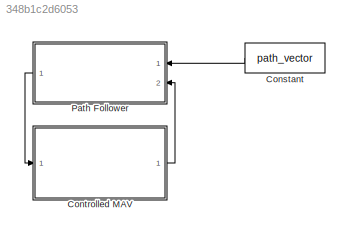
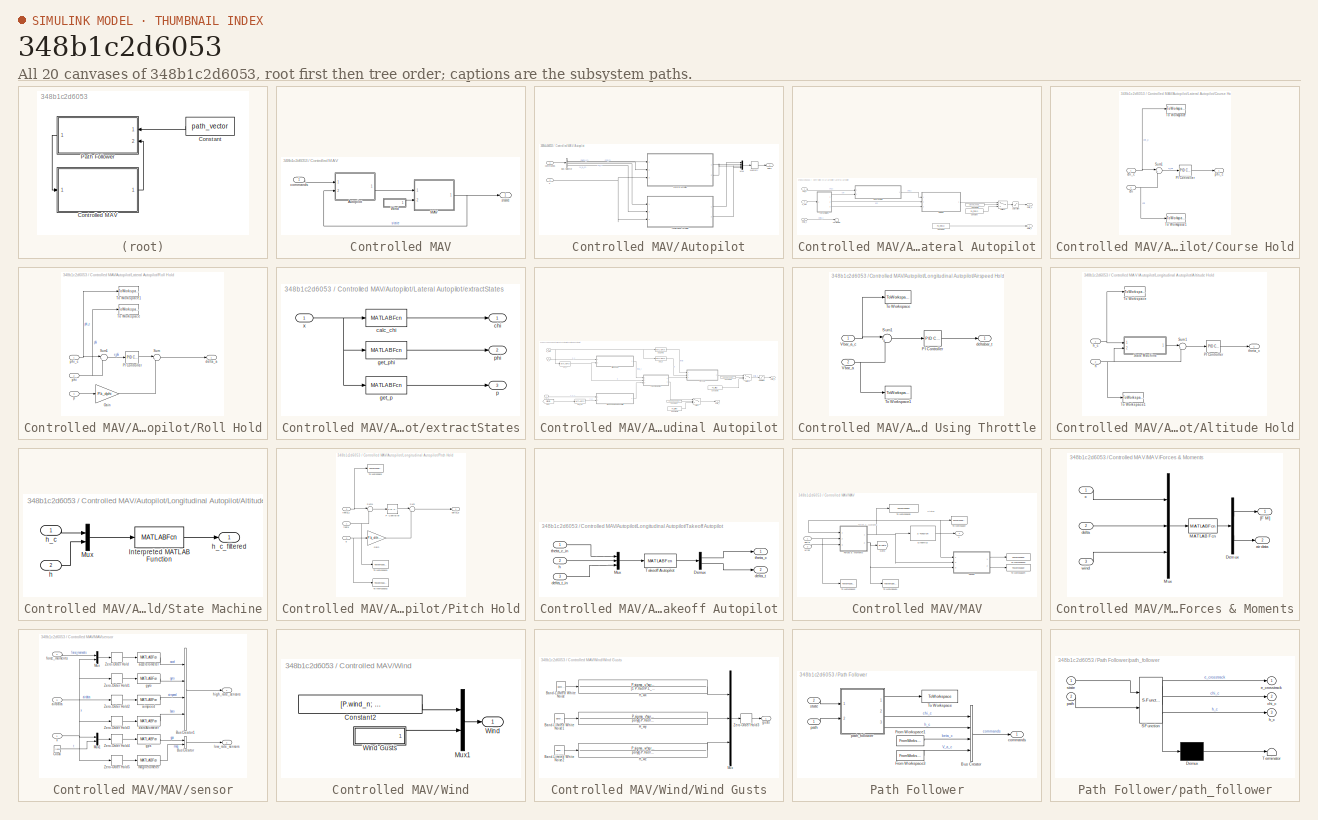
[diagram: thumbnail index - all 20 canvases of the model, root first then tree order]
MODEL slx_348b1c2d6053
KIND model
CONFIG AbsTol = auto
CONFIG EnableMultiTasking = on
CONFIG FixedStep = P.Ts
CONFIG InitFcn = param_chap10
CONFIG MaxStep = auto
CONFIG MinStep = auto
CONFIG RelTol = 1e-3
CONFIG SampleTimeConstraint = Unconstrained
CONFIG SolverName = ode4
CONFIG StartTime = 0.0
CONFIG StopTime = tsim
BLOCK [Constant] Constant
  Value = path_vector
BLOCK [SubSystem] Controlled MAV
  Ports = [1, 1]
  RequestExecContextInheritance = off
BLOCK [SubSystem] Controlled MAV/Autopilot
  Ports = [2, 1]
  RequestExecContextInheritance = off
BLOCK [BusSelector] Controlled MAV/Autopilot/Bus Selector
  OutputSignals = chi_c,beta_c,h_c,V_a_c
  Ports = [1, 4]
BLOCK [SubSystem] Controlled MAV/Autopilot/Lateral Autopilot
  Ports = [3, 2]
  RequestExecContextInheritance = off
BLOCK [Constant] Controlled MAV/Autopilot/Lateral Autopilot/Constant
  Value = P.u_trim(2)
BLOCK [Constant] Controlled MAV/Autopilot/Lateral Autopilot/Constant1
  Value = P.u_trim(3)
BLOCK [Constant] Controlled MAV/Autopilot/Lateral Autopilot/Constant8
  Value = closedLoopEnable
BLOCK [SubSystem] Controlled MAV/Autopilot/Lateral Autopilot/Course Hold
  Ports = [2, 1]
  RequestExecContextInheritance = off
BLOCK [Reference] Controlled MAV/Autopilot/Lateral Autopilot/Course Hold/PI Controller  REF=pid_lib/PID Controller
  Ports = [1, 1]
  SourceBlock = pid_lib/PID Controller
  SourceProductBaseCode = SL
  SourceType = PID 1dof
BLOCK [Sum] Controlled MAV/Autopilot/Lateral Autopilot/Course Hold/Sum1
  Inputs = |+-
  Ports = [2, 1]
BLOCK [ToWorkspace] Controlled MAV/Autopilot/Lateral Autopilot/Course Hold/To Workspace
  FixptAsFi = on
  MaxDataPoints = inf
  Ports = [1]
  SampleTime = -1
  SaveFormat = Timeseries
  VariableName = chi_c
BLOCK [ToWorkspace] Controlled MAV/Autopilot/Lateral Autopilot/Course Hold/To Workspace1
  FixptAsFi = on
  MaxDataPoints = inf
  Ports = [1]
  SampleTime = -1
  SaveFormat = Timeseries
  VariableName = chi
BLOCK [Inport] Controlled MAV/Autopilot/Lateral Autopilot/Course Hold/chi
  Port = 2
BLOCK [Inport] Controlled MAV/Autopilot/Lateral Autopilot/Course Hold/chi_c
BLOCK [Outport] Controlled MAV/Autopilot/Lateral Autopilot/Course Hold/phi_c
  VectorParamsAs1DForOutWhenUnconnected = off
BLOCK [SubSystem] Controlled MAV/Autopilot/Lateral Autopilot/Roll Hold
  Ports = [3, 1]
  RequestExecContextInheritance = off
BLOCK [Gain] Controlled MAV/Autopilot/Lateral Autopilot/Roll Hold/Gain
  Gain = P.k_dphi
BLOCK [Reference] Controlled MAV/Autopilot/Lateral Autopilot/Roll Hold/PI Controller  REF=pid_lib/PID Controller
  Ports = [1, 1]
  SourceBlock = pid_lib/PID Controller
  SourceProductBaseCode = SL
  SourceType = PID 1dof
BLOCK [Sum] Controlled MAV/Autopilot/Lateral Autopilot/Roll Hold/Sum
  Inputs = |+-
  Ports = [2, 1]
BLOCK [Sum] Controlled MAV/Autopilot/Lateral Autopilot/Roll Hold/Sum1
  Inputs = |+-
  Ports = [2, 1]
BLOCK [ToWorkspace] Controlled MAV/Autopilot/Lateral Autopilot/Roll Hold/To Workspace
  FixptAsFi = on
  MaxDataPoints = inf
  Ports = [1]
  SampleTime = -1
  SaveFormat = Timeseries
  VariableName = phi
BLOCK [ToWorkspace] Controlled MAV/Autopilot/Lateral Autopilot/Roll Hold/To Workspace1
  FixptAsFi = on
  MaxDataPoints = inf
  Ports = [1]
  SampleTime = -1
  SaveFormat = Timeseries
  VariableName = phi_c
BLOCK [Outport] Controlled MAV/Autopilot/Lateral Autopilot/Roll Hold/delta_a
  VectorParamsAs1DForOutWhenUnconnected = off
BLOCK [Inport] Controlled MAV/Autopilot/Lateral Autopilot/Roll Hold/p
  Port = 3
BLOCK [Inport] Controlled MAV/Autopilot/Lateral Autopilot/Roll Hold/phi
  Port = 2
BLOCK [Inport] Controlled MAV/Autopilot/Lateral Autopilot/Roll Hold/phi_c
BLOCK [Saturate] Controlled MAV/Autopilot/Lateral Autopilot/Saturation
  LowerLimit = -aileron_c_sat
  UpperLimit = aileron_c_sat
BLOCK [Switch] Controlled MAV/Autopilot/Lateral Autopilot/Switch1
  Criteria = u2 > Threshold
  InputSameDT = off
  SaturateOnIntegerOverflow = off
BLOCK [Terminator] Controlled MAV/Autopilot/Lateral Autopilot/Terminator
BLOCK [Inport] Controlled MAV/Autopilot/Lateral Autopilot/beta_c
  Port = 2
BLOCK [Inport] Controlled MAV/Autopilot/Lateral Autopilot/chi_c
BLOCK [Outport] Controlled MAV/Autopilot/Lateral Autopilot/delta_a
  VectorParamsAs1DForOutWhenUnconnected = off
BLOCK [Outport] Controlled MAV/Autopilot/Lateral Autopilot/delta_r
  Port = 2
  VectorParamsAs1DForOutWhenUnconnected = off
BLOCK [SubSystem] Controlled MAV/Autopilot/Lateral Autopilot/extractStates
  Ports = [1, 3]
  RequestExecContextInheritance = off
BLOCK [MATLABFcn] Controlled MAV/Autopilot/Lateral Autopilot/extractStates/calc_chi
  MATLABFcn = calc_chi(u)
  Ports = [1, 1]
BLOCK [Outport] Controlled MAV/Autopilot/Lateral Autopilot/extractStates/chi
  VectorParamsAs1DForOutWhenUnconnected = off
BLOCK [MATLABFcn] Controlled MAV/Autopilot/Lateral Autopilot/extractStates/get_p
  MATLABFcn = get_p(u)
  Ports = [1, 1]
BLOCK [MATLABFcn] Controlled MAV/Autopilot/Lateral Autopilot/extractStates/get_phi
  MATLABFcn = get_phi(u)
  Ports = [1, 1]
BLOCK [Outport] Controlled MAV/Autopilot/Lateral Autopilot/extractStates/p
  Port = 3
  VectorParamsAs1DForOutWhenUnconnected = off
BLOCK [Outport] Controlled MAV/Autopilot/Lateral Autopilot/extractStates/phi
  Port = 2
  VectorParamsAs1DForOutWhenUnconnected = off
BLOCK [Inport] Controlled MAV/Autopilot/Lateral Autopilot/extractStates/x
BLOCK [Inport] Controlled MAV/Autopilot/Lateral Autopilot/x_hat
  Port = 3
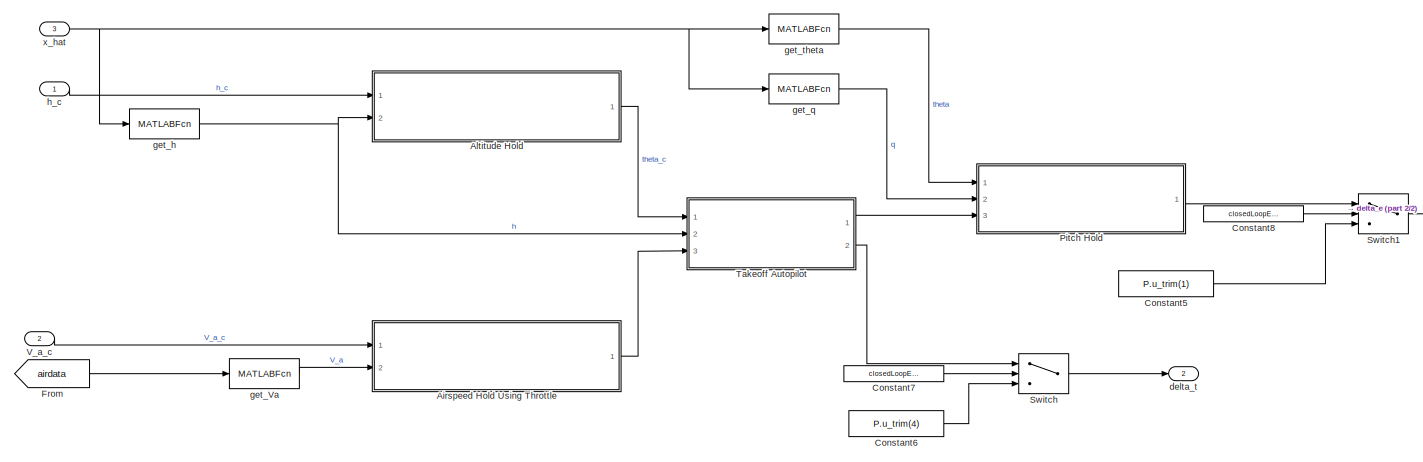
[diagram: Controlled MAV/Autopilot/Longitudinal Autopilot - part 1/2, most of the canvas]
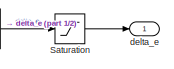
[diagram: Controlled MAV/Autopilot/Longitudinal Autopilot - part 2/2, middle right region]
BLOCK [SubSystem] Controlled MAV/Autopilot/Longitudinal Autopilot
  Ports = [3, 2]
  RequestExecContextInheritance = off
BLOCK [SubSystem] Controlled MAV/Autopilot/Longitudinal Autopilot/Airspeed Hold Using Throttle
  Ports = [2, 1]
  RequestExecContextInheritance = off
BLOCK [Reference] Controlled MAV/Autopilot/Longitudinal Autopilot/Airspeed Hold Using Throttle/PI Controller  REF=pid_lib/PID Controller
  Ports = [1, 1]
  SourceBlock = pid_lib/PID Controller
  SourceProductBaseCode = SL
  SourceType = PID 1dof
BLOCK [Sum] Controlled MAV/Autopilot/Longitudinal Autopilot/Airspeed Hold Using Throttle/Sum1
  Inputs = |+-
  Ports = [2, 1]
BLOCK [ToWorkspace] Controlled MAV/Autopilot/Longitudinal Autopilot/Airspeed Hold Using Throttle/To Workspace
  FixptAsFi = on
  MaxDataPoints = inf
  Ports = [1]
  SampleTime = -1
  SaveFormat = Timeseries
  VariableName = Vbar_a_c
BLOCK [ToWorkspace] Controlled MAV/Autopilot/Longitudinal Autopilot/Airspeed Hold Using Throttle/To Workspace1
  FixptAsFi = on
  MaxDataPoints = inf
  Ports = [1]
  SampleTime = -1
  SaveFormat = Timeseries
  VariableName = Vbar_a
BLOCK [Inport] Controlled MAV/Autopilot/Longitudinal Autopilot/Airspeed Hold Using Throttle/Vbar_a
  Port = 2
BLOCK [Inport] Controlled MAV/Autopilot/Longitudinal Autopilot/Airspeed Hold Using Throttle/Vbar_a_c
BLOCK [Outport] Controlled MAV/Autopilot/Longitudinal Autopilot/Airspeed Hold Using Throttle/deltabar_t
  VectorParamsAs1DForOutWhenUnconnected = off
BLOCK [SubSystem] Controlled MAV/Autopilot/Longitudinal Autopilot/Altitude Hold
  Ports = [2, 1]
  RequestExecContextInheritance = off
BLOCK [Reference] Controlled MAV/Autopilot/Longitudinal Autopilot/Altitude Hold/PI Controller  REF=pid_lib/PID Controller
  Ports = [1, 1]
  SourceBlock = pid_lib/PID Controller
  SourceProductBaseCode = SL
  SourceType = PID 1dof
BLOCK [SubSystem] Controlled MAV/Autopilot/Longitudinal Autopilot/Altitude Hold/State Machine
  Ports = [2, 1]
  RequestExecContextInheritance = off
BLOCK [MATLABFcn] Controlled MAV/Autopilot/Longitudinal Autopilot/Altitude Hold/State Machine/Interpreted MATLAB Function
  MATLABFcn = stateMachine(u(1), u(2), P)
  Ports = [1, 1]
BLOCK [Mux] Controlled MAV/Autopilot/Longitudinal Autopilot/Altitude Hold/State Machine/Mux
  DisplayOption = bar
  Inputs = 2
  Ports = [2, 1]
BLOCK [Inport] Controlled MAV/Autopilot/Longitudinal Autopilot/Altitude Hold/State Machine/h
  Port = 2
BLOCK [Inport] Controlled MAV/Autopilot/Longitudinal Autopilot/Altitude Hold/State Machine/h_c
BLOCK [Outport] Controlled MAV/Autopilot/Longitudinal Autopilot/Altitude Hold/State Machine/h_c_filtered
  VectorParamsAs1DForOutWhenUnconnected = off
BLOCK [Sum] Controlled MAV/Autopilot/Longitudinal Autopilot/Altitude Hold/Sum1
  Inputs = |+-
  Ports = [2, 1]
BLOCK [ToWorkspace] Controlled MAV/Autopilot/Longitudinal Autopilot/Altitude Hold/To Workspace
  FixptAsFi = on
  MaxDataPoints = inf
  Ports = [1]
  SampleTime = -1
  SaveFormat = Timeseries
  VariableName = h_c
BLOCK [ToWorkspace] Controlled MAV/Autopilot/Longitudinal Autopilot/Altitude Hold/To Workspace1
  FixptAsFi = on
  MaxDataPoints = inf
  Ports = [1]
  SampleTime = -1
  SaveFormat = Timeseries
  VariableName = h
BLOCK [Inport] Controlled MAV/Autopilot/Longitudinal Autopilot/Altitude Hold/h
  Port = 2
BLOCK [Inport] Controlled MAV/Autopilot/Longitudinal Autopilot/Altitude Hold/h_c
BLOCK [Outport] Controlled MAV/Autopilot/Longitudinal Autopilot/Altitude Hold/theta_c
  VectorParamsAs1DForOutWhenUnconnected = off
BLOCK [Constant] Controlled MAV/Autopilot/Longitudinal Autopilot/Constant5
  Value = P.u_trim(1)
BLOCK [Constant] Controlled MAV/Autopilot/Longitudinal Autopilot/Constant6
  Value = P.u_trim(4)
BLOCK [Constant] Controlled MAV/Autopilot/Longitudinal Autopilot/Constant7
  Value = closedLoopEnable
BLOCK [Constant] Controlled MAV/Autopilot/Longitudinal Autopilot/Constant8
  Value = closedLoopEnable
BLOCK [From] Controlled MAV/Autopilot/Longitudinal Autopilot/From
  GotoTag = airdata
  TagVisibility = global
BLOCK [SubSystem] Controlled MAV/Autopilot/Longitudinal Autopilot/Pitch Hold
  Ports = [3, 1]
  RequestExecContextInheritance = off
BLOCK [Gain] Controlled MAV/Autopilot/Longitudinal Autopilot/Pitch Hold/Gain
  Gain = P.k_dtheta
BLOCK [Reference] Controlled MAV/Autopilot/Longitudinal Autopilot/Pitch Hold/P Controller  REF=pid_lib/PID Controller
  Ports = [1, 1]
  SourceBlock = pid_lib/PID Controller
  SourceProductBaseCode = SL
  SourceType = PID 1dof
BLOCK [Sum] Controlled MAV/Autopilot/Longitudinal Autopilot/Pitch Hold/Sum
  Inputs = |+-
  Ports = [2, 1]
BLOCK [Sum] Controlled MAV/Autopilot/Longitudinal Autopilot/Pitch Hold/Sum1
  Inputs = |+-
  Ports = [2, 1]
BLOCK [ToWorkspace] Controlled MAV/Autopilot/Longitudinal Autopilot/Pitch Hold/To Workspace
  FixptAsFi = on
  MaxDataPoints = inf
  Ports = [1]
  SampleTime = -1
  SaveFormat = Timeseries
  VariableName = theta_c
BLOCK [ToWorkspace] Controlled MAV/Autopilot/Longitudinal Autopilot/Pitch Hold/To Workspace1
  FixptAsFi = on
  MaxDataPoints = inf
  Ports = [1]
  SampleTime = -1
  SaveFormat = Timeseries
  VariableName = theta
BLOCK [ToWorkspace] Controlled MAV/Autopilot/Longitudinal Autopilot/Pitch Hold/To Workspace2
  FixptAsFi = on
  MaxDataPoints = inf
  Ports = [1]
  SampleTime = -1
  SaveFormat = Timeseries
  VariableName = q
BLOCK [Outport] Controlled MAV/Autopilot/Longitudinal Autopilot/Pitch Hold/delta_e
  VectorParamsAs1DForOutWhenUnconnected = off
BLOCK [Inport] Controlled MAV/Autopilot/Longitudinal Autopilot/Pitch Hold/q
  Port = 2
BLOCK [Inport] Controlled MAV/Autopilot/Longitudinal Autopilot/Pitch Hold/theta
BLOCK [Inport] Controlled MAV/Autopilot/Longitudinal Autopilot/Pitch Hold/theta_c
  Port = 3
BLOCK [Saturate] Controlled MAV/Autopilot/Longitudinal Autopilot/Saturation
  LowerLimit = -elevator_c_sat
  UpperLimit = elevator_c_sat
BLOCK [Switch] Controlled MAV/Autopilot/Longitudinal Autopilot/Switch
  Criteria = u2 > Threshold
  InputSameDT = off
  SaturateOnIntegerOverflow = off
BLOCK [Switch] Controlled MAV/Autopilot/Longitudinal Autopilot/Switch1
  Criteria = u2 > Threshold
  InputSameDT = off
  SaturateOnIntegerOverflow = off
BLOCK [SubSystem] Controlled MAV/Autopilot/Longitudinal Autopilot/Takeoff Autopilot
  Ports = [3, 2]
  RequestExecContextInheritance = off
BLOCK [Demux] Controlled MAV/Autopilot/Longitudinal Autopilot/Takeoff Autopilot/Demux
  Outputs = 2
  Ports = [1, 2]
BLOCK [Mux] Controlled MAV/Autopilot/Longitudinal Autopilot/Takeoff Autopilot/Mux
  DisplayOption = bar
  Inputs = 3
  Ports = [3, 1]
BLOCK [MATLABFcn] Controlled MAV/Autopilot/Longitudinal Autopilot/Takeoff Autopilot/Takeoff Autopilot
  MATLABFcn = takeoff_autopilot(u(1), u(2), u(3), P)
  OutputDimensions = 2
  OutputSignalType = real
  Ports = [1, 1]
BLOCK [Outport] Controlled MAV/Autopilot/Longitudinal Autopilot/Takeoff Autopilot/delta_t
  Port = 2
  VectorParamsAs1DForOutWhenUnconnected = off
BLOCK [Inport] Controlled MAV/Autopilot/Longitudinal Autopilot/Takeoff Autopilot/delta_t_in
  Port = 3
BLOCK [Inport] Controlled MAV/Autopilot/Longitudinal Autopilot/Takeoff Autopilot/h
  Port = 2
BLOCK [Outport] Controlled MAV/Autopilot/Longitudinal Autopilot/Takeoff Autopilot/theta_c
  VectorParamsAs1DForOutWhenUnconnected = off
BLOCK [Inport] Controlled MAV/Autopilot/Longitudinal Autopilot/Takeoff Autopilot/theta_c_in
BLOCK [Inport] Controlled MAV/Autopilot/Longitudinal Autopilot/V_a_c
  Port = 2
BLOCK [Outport] Controlled MAV/Autopilot/Longitudinal Autopilot/delta_e
  VectorParamsAs1DForOutWhenUnconnected = off
BLOCK [Outport] Controlled MAV/Autopilot/Longitudinal Autopilot/delta_t
  Port = 2
  VectorParamsAs1DForOutWhenUnconnected = off
BLOCK [MATLABFcn] Controlled MAV/Autopilot/Longitudinal Autopilot/get_Va
  MATLABFcn = get_Va(u)
  Ports = [1, 1]
BLOCK [MATLABFcn] Controlled MAV/Autopilot/Longitudinal Autopilot/get_h
  MATLABFcn = get_h(u)
  Ports = [1, 1]
BLOCK [MATLABFcn] Controlled MAV/Autopilot/Longitudinal Autopilot/get_q
  MATLABFcn = get_q(u)
  Ports = [1, 1]
BLOCK [MATLABFcn] Controlled MAV/Autopilot/Longitudinal Autopilot/get_theta
  MATLABFcn = get_theta(u)
  Ports = [1, 1]
BLOCK [Inport] Controlled MAV/Autopilot/Longitudinal Autopilot/h_c
BLOCK [Inport] Controlled MAV/Autopilot/Longitudinal Autopilot/x_hat
  Port = 3
BLOCK [Memory] Controlled MAV/Autopilot/Memory
  InheritSampleTime = on
  InitialCondition = P.u_trim
BLOCK [Mux] Controlled MAV/Autopilot/Mux
  DisplayOption = bar
  Ports = [4, 1]
BLOCK [Inport] Controlled MAV/Autopilot/commands
BLOCK [Outport] Controlled MAV/Autopilot/delta
  VectorParamsAs1DForOutWhenUnconnected = off
BLOCK [Inport] Controlled MAV/Autopilot/x
  Port = 2
BLOCK [SubSystem] Controlled MAV/MAV
  Ports = [2, 1]
  RequestExecContextInheritance = off
BLOCK [S-Function] Controlled MAV/MAV/Dynamics
  EnableBusSupport = off
  FunctionName = mav_dynamics
  Parameters = P
  Ports = [1, 1]
  SFcnIsStateOwnerBlock = off
  SFunctionDeploymentMode = off
BLOCK [SubSystem] Controlled MAV/MAV/Forces & Moments
  Ports = [3, 2]
  RequestExecContextInheritance = off
BLOCK [Demux] Controlled MAV/MAV/Forces & Moments/Demux
  Outputs = [6;6]
  Ports = [1, 2]
BLOCK [MATLABFcn] Controlled MAV/MAV/Forces & Moments/MATLAB Fcn
  MATLABFcn = forces_moments(u(1:12),u(13:16),u(17:22),P)
  OutputDimensions = 12
  Ports = [1, 1]
BLOCK [Mux] Controlled MAV/MAV/Forces & Moments/Mux
  DisplayOption = bar
  Inputs = 3
  Ports = [3, 1]
BLOCK [Outport] Controlled MAV/MAV/Forces & Moments/[F M]
  VectorParamsAs1DForOutWhenUnconnected = off
BLOCK [Outport] Controlled MAV/MAV/Forces & Moments/air data
  Port = 2
  VectorParamsAs1DForOutWhenUnconnected = off
BLOCK [Inport] Controlled MAV/MAV/Forces & Moments/delta
  Port = 2
BLOCK [Inport] Controlled MAV/MAV/Forces & Moments/wind
  Port = 3
BLOCK [Inport] Controlled MAV/MAV/Forces & Moments/x
BLOCK [Goto] Controlled MAV/MAV/Goto
  GotoTag = airdata
  TagVisibility = global
BLOCK [ToWorkspace] Controlled MAV/MAV/To Workspace
  FixptAsFi = on
  MaxDataPoints = inf
  Ports = [1]
  SampleTime = -1
  SaveFormat = Timeseries
  VariableName = states
BLOCK [ToWorkspace] Controlled MAV/MAV/To Workspace1
  FixptAsFi = on
  MaxDataPoints = inf
  Ports = [1]
  SampleTime = -1
  SaveFormat = Timeseries
  VariableName = airdata
BLOCK [ToWorkspace] Controlled MAV/MAV/To Workspace2
  FixptAsFi = on
  MaxDataPoints = inf
  Ports = [1]
  SampleTime = -1
  SaveFormat = Timeseries
  VariableName = delta
BLOCK [ToWorkspace] Controlled MAV/MAV/To Workspace3
  FixptAsFi = on
  MaxDataPoints = inf
  Ports = [1]
  SampleTime = -1
  SaveFormat = Timeseries
  VariableName = high_rate_sensors
BLOCK [ToWorkspace] Controlled MAV/MAV/To Workspace4
  FixptAsFi = on
  MaxDataPoints = inf
  Ports = [1]
  SampleTime = -1
  SaveFormat = Timeseries
  VariableName = low_rate_sensors
BLOCK [ToWorkspace] Controlled MAV/MAV/To Workspace5
  FixptAsFi = on
  MaxDataPoints = inf
  Ports = [1]
  SampleTime = -1
  SaveFormat = Timeseries
  VariableName = forces_moments_logged
BLOCK [Inport] Controlled MAV/MAV/delta
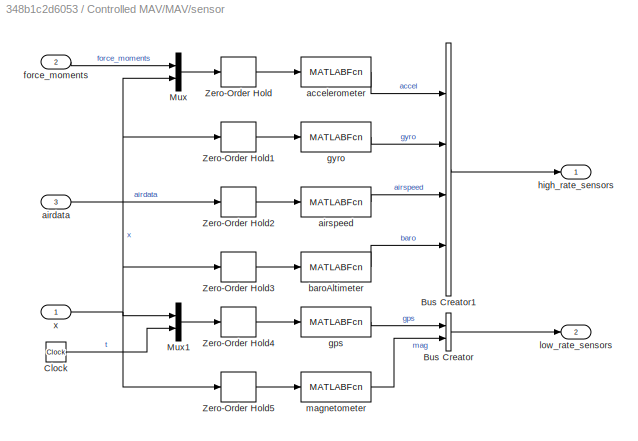
BLOCK [SubSystem] Controlled MAV/MAV/sensor
  Ports = [3, 2]
  RequestExecContextInheritance = off
BLOCK [BusCreator] Controlled MAV/MAV/sensor/Bus Creator
  DisplayOption = bar
  InheritFromInputs = on
  Inputs = 2
  Ports = [2, 1]
BLOCK [BusCreator] Controlled MAV/MAV/sensor/Bus Creator1
  DisplayOption = bar
  InheritFromInputs = on
  Inputs = 4
  Ports = [4, 1]
BLOCK [Clock] Controlled MAV/MAV/sensor/Clock
BLOCK [Mux] Controlled MAV/MAV/sensor/Mux
  DisplayOption = bar
  Inputs = 2
  Ports = [2, 1]
BLOCK [Mux] Controlled MAV/MAV/sensor/Mux1
  DisplayOption = bar
  Inputs = 2
  Ports = [2, 1]
BLOCK [ZeroOrderHold] Controlled MAV/MAV/sensor/Zero-Order Hold
  SampleTime = P.Ts_highrate
BLOCK [ZeroOrderHold] Controlled MAV/MAV/sensor/Zero-Order Hold1
  SampleTime = P.Ts_highrate
BLOCK [ZeroOrderHold] Controlled MAV/MAV/sensor/Zero-Order Hold2
  SampleTime = P.Ts_highrate
BLOCK [ZeroOrderHold] Controlled MAV/MAV/sensor/Zero-Order Hold3
  SampleTime = P.Ts_highrate
BLOCK [ZeroOrderHold] Controlled MAV/MAV/sensor/Zero-Order Hold4
  SampleTime = P.Ts_lowrate
BLOCK [ZeroOrderHold] Controlled MAV/MAV/sensor/Zero-Order Hold5
  SampleTime = P.Ts_lowrate
BLOCK [MATLABFcn] Controlled MAV/MAV/sensor/accelerometer
  MATLABFcn = accelerometer(u(1:6), u(7:18), P)
  Ports = [1, 1]
BLOCK [Inport] Controlled MAV/MAV/sensor/airdata
  Port = 3
BLOCK [MATLABFcn] Controlled MAV/MAV/sensor/airspeed
  MATLABFcn = airspeed(u,P)
  Ports = [1, 1]
BLOCK [MATLABFcn] Controlled MAV/MAV/sensor/baroAltimeter
  MATLABFcn = baroAltimeter(u,P)
  Ports = [1, 1]
BLOCK [Inport] Controlled MAV/MAV/sensor/force_moments
  Port = 2
BLOCK [MATLABFcn] Controlled MAV/MAV/sensor/gps
  MATLABFcn = gps(u(1:12), u(13), P)
  Ports = [1, 1]
BLOCK [MATLABFcn] Controlled MAV/MAV/sensor/gyro
  MATLABFcn = gyro(u,P)
  Ports = [1, 1]
BLOCK [Outport] Controlled MAV/MAV/sensor/high_rate_sensors
  VectorParamsAs1DForOutWhenUnconnected = off
BLOCK [Outport] Controlled MAV/MAV/sensor/low_rate_sensors
  Port = 2
  VectorParamsAs1DForOutWhenUnconnected = off
BLOCK [MATLABFcn] Controlled MAV/MAV/sensor/magnetometer
  MATLABFcn = magnetometer(u,P)
  Ports = [1, 1]
BLOCK [Inport] Controlled MAV/MAV/sensor/x
BLOCK [Inport] Controlled MAV/MAV/wind
  Port = 2
BLOCK [Outport] Controlled MAV/MAV/x
  VectorParamsAs1DForOutWhenUnconnected = off
BLOCK [SubSystem] Controlled MAV/Wind
  Ports = [0, 1]
  RequestExecContextInheritance = off
BLOCK [Constant] Controlled MAV/Wind/Constant2
  Value = [P.wind_n; P.wind_e; P.wind_d]
BLOCK [Mux] Controlled MAV/Wind/Mux1
  DisplayOption = bar
  Inputs = 2
  Ports = [2, 1]
BLOCK [Outport] Controlled MAV/Wind/Wind
  VectorParamsAs1DForOutWhenUnconnected = off
BLOCK [SubSystem] Controlled MAV/Wind/Wind Gusts
  Ports = [0, 1]
  RequestExecContextInheritance = off
BLOCK [Reference] Controlled MAV/Wind/Wind Gusts/Band-Limited White Noise  REF=simulink/Sources/Band-Limited
White Noise
  Ports = [0, 1]
  SourceBlock = simulink/Sources/Band-Limited\nWhite Noise
  SourceProductBaseCode = SL
  SourceType = Band-Limited White Noise.
BLOCK [Reference] Controlled MAV/Wind/Wind Gusts/Band-Limited White Noise1  REF=simulink/Sources/Band-Limited
White Noise
  Ports = [0, 1]
  SourceBlock = simulink/Sources/Band-Limited\nWhite Noise
  SourceProductBaseCode = SL
  SourceType = Band-Limited White Noise.
BLOCK [Reference] Controlled MAV/Wind/Wind Gusts/Band-Limited White Noise2  REF=simulink/Sources/Band-Limited
White Noise
  Ports = [0, 1]
  SourceBlock = simulink/Sources/Band-Limited\nWhite Noise
  SourceProductBaseCode = SL
  SourceType = Band-Limited White Noise.
BLOCK [TransferFcn] Controlled MAV/Wind/Wind Gusts/H_wx
  Denominator = [1 P.Va0/P.L_u]
  Numerator = P.sigma_u*sqrt(2*P.Va0/P.L_u)
BLOCK [TransferFcn] Controlled MAV/Wind/Wind Gusts/H_wy
  Denominator = poly([-P.Va0/P.L_v, -P.Va0/P.L_v])
  Numerator = P.sigma_v*sqrt(3*P.Va0/P.L_v)*[0, 1, P.Va0/sqrt(3)/P.L_v]
BLOCK [TransferFcn] Controlled MAV/Wind/Wind Gusts/H_wz
  Denominator = poly([-P.Va0/P.L_w, -P.Va0/P.L_w])
  Numerator = P.sigma_w*sqrt(3*P.Va0/P.L_w)*[0, 1, P.Va0/sqrt(3)/P.L_w]
BLOCK [Mux] Controlled MAV/Wind/Wind Gusts/Mux
  DisplayOption = bar
  Inputs = 3
  Ports = [3, 1]
BLOCK [ZeroOrderHold] Controlled MAV/Wind/Wind Gusts/Zero-Order Hold3
  SampleTime = P.Ts
BLOCK [Outport] Controlled MAV/Wind/Wind Gusts/gusts
  VectorParamsAs1DForOutWhenUnconnected = off
BLOCK [Inport] Controlled MAV/commands
BLOCK [Outport] Controlled MAV/state
  VectorParamsAs1DForOutWhenUnconnected = off
BLOCK [SubSystem] Path Follower
  Ports = [2, 1]
  RequestExecContextInheritance = off
BLOCK [BusCreator] Path Follower/Bus Creator
  DisplayOption = bar
  InheritFromInputs = on
  Inputs = 4
  Ports = [4, 1]
BLOCK [FromWorkspace] Path Follower/From Workspace1
  VariableName = beta_c_in
BLOCK [FromWorkspace] Path Follower/From Workspace3
  VariableName = V_a_c_in
BLOCK [ToWorkspace] Path Follower/To Workspace
  FixptAsFi = on
  MaxDataPoints = inf
  Ports = [1]
  SampleTime = -1
  SaveFormat = Timeseries
  VariableName = crosstrack_error
BLOCK [Outport] Path Follower/commands
  VectorParamsAs1DForOutWhenUnconnected = off
BLOCK [Inport] Path Follower/path
BLOCK [SubSystem] Path Follower/path_follower
  ErrorFcn = Stateflow.Translate.translate
  PermitHierarchicalResolution = ExplicitOnly
  Ports = [2, 3]
  RequestExecContextInheritance = off
  SFBlockType = MATLAB Function
  TreatAsAtomicUnit = on
BLOCK [Demux] Path Follower/path_follower/ Demux 
  Outputs = 1
  Ports = [1, 1]
BLOCK [S-Function] Path Follower/path_follower/ SFunction 
  EnableBusSupport = on
  FunctionName = sf_sfun
  PortCounts = [2 4]
  Ports = [2, 4]
  SFcnIsStateOwnerBlock = off
  SFunctionDeploymentMode = off
  Tag = Stateflow S-Function 2
BLOCK [Terminator] Path Follower/path_follower/ Terminator 
BLOCK [Outport] Path Follower/path_follower/chi_c
  Port = 2
  VectorParamsAs1DForOutWhenUnconnected = off
BLOCK [Outport] Path Follower/path_follower/e_crosstrack
  VectorParamsAs1DForOutWhenUnconnected = off
BLOCK [Outport] Path Follower/path_follower/h_c
  Port = 3
  VectorParamsAs1DForOutWhenUnconnected = off
BLOCK [Inport] Path Follower/path_follower/path
  Port = 2
BLOCK [Inport] Path Follower/path_follower/state
BLOCK [Inport] Path Follower/state
  Port = 2
ANNOTATION Controlled MAV/MAV: Forces & Moments
ANNOTATION Controlled MAV/MAV: States
LINE Constant:1 -> Path Follower:1
LINE Controlled MAV/Autopilot/Bus Selector:1 -> Controlled MAV/Autopilot/Lateral Autopilot:1
LINE Controlled MAV/Autopilot/Bus Selector:2 -> Controlled MAV/Autopilot/Lateral Autopilot:2
LINE Controlled MAV/Autopilot/Bus Selector:3 -> Controlled MAV/Autopilot/Longitudinal Autopilot:1
LINE Controlled MAV/Autopilot/Bus Selector:4 -> Controlled MAV/Autopilot/Longitudinal Autopilot:2
LINE Controlled MAV/Autopilot/Lateral Autopilot/Constant1:1 -> Controlled MAV/Autopilot/Lateral Autopilot/delta_r:1
LINE Controlled MAV/Autopilot/Lateral Autopilot/Constant8:1 -> Controlled MAV/Autopilot/Lateral Autopilot/Switch1:2
LINE Controlled MAV/Autopilot/Lateral Autopilot/Constant:1 -> Controlled MAV/Autopilot/Lateral Autopilot/Switch1:3
LINE Controlled MAV/Autopilot/Lateral Autopilot/Course Hold/PI Controller:1 -> Controlled MAV/Autopilot/Lateral Autopilot/Course Hold/phi_c:1
LINE Controlled MAV/Autopilot/Lateral Autopilot/Course Hold/Sum1:1 -> Controlled MAV/Autopilot/Lateral Autopilot/Course Hold/PI Controller:1
NET Controlled MAV/Autopilot/Lateral Autopilot/Course Hold/chi:1 -> Controlled MAV/Autopilot/Lateral Autopilot/Course Hold/Sum1:2, Controlled MAV/Autopilot/Lateral Autopilot/Course Hold/To Workspace1:1
NET Controlled MAV/Autopilot/Lateral Autopilot/Course Hold/chi_c:1 -> Controlled MAV/Autopilot/Lateral Autopilot/Course Hold/Sum1:1, Controlled MAV/Autopilot/Lateral Autopilot/Course Hold/To Workspace:1
LINE Controlled MAV/Autopilot/Lateral Autopilot/Course Hold:1 -> Controlled MAV/Autopilot/Lateral Autopilot/Roll Hold:1
LINE Controlled MAV/Autopilot/Lateral Autopilot/Roll Hold/Gain:1 -> Controlled MAV/Autopilot/Lateral Autopilot/Roll Hold/Sum:2
LINE Controlled MAV/Autopilot/Lateral Autopilot/Roll Hold/PI Controller:1 -> Controlled MAV/Autopilot/Lateral Autopilot/Roll Hold/Sum:1
LINE Controlled MAV/Autopilot/Lateral Autopilot/Roll Hold/Sum1:1 -> Controlled MAV/Autopilot/Lateral Autopilot/Roll Hold/PI Controller:1
LINE Controlled MAV/Autopilot/Lateral Autopilot/Roll Hold/Sum:1 -> Controlled MAV/Autopilot/Lateral Autopilot/Roll Hold/delta_a:1
LINE Controlled MAV/Autopilot/Lateral Autopilot/Roll Hold/p:1 -> Controlled MAV/Autopilot/Lateral Autopilot/Roll Hold/Gain:1
NET Controlled MAV/Autopilot/Lateral Autopilot/Roll Hold/phi:1 -> Controlled MAV/Autopilot/Lateral Autopilot/Roll Hold/Sum1:2, Controlled MAV/Autopilot/Lateral Autopilot/Roll Hold/To Workspace:1
NET Controlled MAV/Autopilot/Lateral Autopilot/Roll Hold/phi_c:1 -> Controlled MAV/Autopilot/Lateral Autopilot/Roll Hold/Sum1:1, Controlled MAV/Autopilot/Lateral Autopilot/Roll Hold/To Workspace1:1
LINE Controlled MAV/Autopilot/Lateral Autopilot/Roll Hold:1 -> Controlled MAV/Autopilot/Lateral Autopilot/Switch1:1
LINE Controlled MAV/Autopilot/Lateral Autopilot/Saturation:1 -> Controlled MAV/Autopilot/Lateral Autopilot/delta_a:1
LINE Controlled MAV/Autopilot/Lateral Autopilot/Switch1:1 -> Controlled MAV/Autopilot/Lateral Autopilot/Saturation:1
LINE Controlled MAV/Autopilot/Lateral Autopilot/beta_c:1 -> Controlled MAV/Autopilot/Lateral Autopilot/Terminator:1
LINE Controlled MAV/Autopilot/Lateral Autopilot/chi_c:1 -> Controlled MAV/Autopilot/Lateral Autopilot/Course Hold:1
LINE Controlled MAV/Autopilot/Lateral Autopilot/extractStates/calc_chi:1 -> Controlled MAV/Autopilot/Lateral Autopilot/extractStates/chi:1
LINE Controlled MAV/Autopilot/Lateral Autopilot/extractStates/get_p:1 -> Controlled MAV/Autopilot/Lateral Autopilot/extractStates/p:1
LINE Controlled MAV/Autopilot/Lateral Autopilot/extractStates/get_phi:1 -> Controlled MAV/Autopilot/Lateral Autopilot/extractStates/phi:1
NET Controlled MAV/Autopilot/Lateral Autopilot/extractStates/x:1 -> Controlled MAV/Autopilot/Lateral Autopilot/extractStates/calc_chi:1, Controlled MAV/Autopilot/Lateral Autopilot/extractStates/get_p:1, Controlled MAV/Autopilot/Lateral Autopilot/extractStates/get_phi:1
LINE Controlled MAV/Autopilot/Lateral Autopilot/extractStates:1 -> Controlled MAV/Autopilot/Lateral Autopilot/Course Hold:2
LINE Controlled MAV/Autopilot/Lateral Autopilot/extractStates:2 -> Controlled MAV/Autopilot/Lateral Autopilot/Roll Hold:2
LINE Controlled MAV/Autopilot/Lateral Autopilot/extractStates:3 -> Controlled MAV/Autopilot/Lateral Autopilot/Roll Hold:3
LINE Controlled MAV/Autopilot/Lateral Autopilot/x_hat:1 -> Controlled MAV/Autopilot/Lateral Autopilot/extractStates:1
LINE Controlled MAV/Autopilot/Lateral Autopilot:1 -> Controlled MAV/Autopilot/Mux:2
LINE Controlled MAV/Autopilot/Lateral Autopilot:2 -> Controlled MAV/Autopilot/Mux:3
LINE Controlled MAV/Autopilot/Longitudinal Autopilot/Airspeed Hold Using Throttle/PI Controller:1 -> Controlled MAV/Autopilot/Longitudinal Autopilot/Airspeed Hold Using Throttle/deltabar_t:1
LINE Controlled MAV/Autopilot/Longitudinal Autopilot/Airspeed Hold Using Throttle/Sum1:1 -> Controlled MAV/Autopilot/Longitudinal Autopilot/Airspeed Hold Using Throttle/PI Controller:1
NET Controlled MAV/Autopilot/Longitudinal Autopilot/Airspeed Hold Using Throttle/Vbar_a:1 -> Controlled MAV/Autopilot/Longitudinal Autopilot/Airspeed Hold Using Throttle/Sum1:2, Controlled MAV/Autopilot/Longitudinal Autopilot/Airspeed Hold Using Throttle/To Workspace1:1
NET Controlled MAV/Autopilot/Longitudinal Autopilot/Airspeed Hold Using Throttle/Vbar_a_c:1 -> Controlled MAV/Autopilot/Longitudinal Autopilot/Airspeed Hold Using Throttle/Sum1:1, Controlled MAV/Autopilot/Longitudinal Autopilot/Airspeed Hold Using Throttle/To Workspace:1
LINE Controlled MAV/Autopilot/Longitudinal Autopilot/Airspeed Hold Using Throttle:1 -> Controlled MAV/Autopilot/Longitudinal Autopilot/Takeoff Autopilot:3
LINE Controlled MAV/Autopilot/Longitudinal Autopilot/Altitude Hold/PI Controller:1 -> Controlled MAV/Autopilot/Longitudinal Autopilot/Altitude Hold/theta_c:1
LINE Controlled MAV/Autopilot/Longitudinal Autopilot/Altitude Hold/State Machine/Interpreted MATLAB Function:1 -> Controlled MAV/Autopilot/Longitudinal Autopilot/Altitude Hold/State Machine/h_c_filtered:1
LINE Controlled MAV/Autopilot/Longitudinal Autopilot/Altitude Hold/State Machine/Mux:1 -> Controlled MAV/Autopilot/Longitudinal Autopilot/Altitude Hold/State Machine/Interpreted MATLAB Function:1
LINE Controlled MAV/Autopilot/Longitudinal Autopilot/Altitude Hold/State Machine/h:1 -> Controlled MAV/Autopilot/Longitudinal Autopilot/Altitude Hold/State Machine/Mux:2
LINE Controlled MAV/Autopilot/Longitudinal Autopilot/Altitude Hold/State Machine/h_c:1 -> Controlled MAV/Autopilot/Longitudinal Autopilot/Altitude Hold/State Machine/Mux:1
LINE Controlled MAV/Autopilot/Longitudinal Autopilot/Altitude Hold/State Machine:1 -> Controlled MAV/Autopilot/Longitudinal Autopilot/Altitude Hold/Sum1:1
LINE Controlled MAV/Autopilot/Longitudinal Autopilot/Altitude Hold/Sum1:1 -> Controlled MAV/Autopilot/Longitudinal Autopilot/Altitude Hold/PI Controller:1
NET Controlled MAV/Autopilot/Longitudinal Autopilot/Altitude Hold/h:1 -> Controlled MAV/Autopilot/Longitudinal Autopilot/Altitude Hold/State Machine:2, Controlled MAV/Autopilot/Longitudinal Autopilot/Altitude Hold/Sum1:2, Controlled MAV/Autopilot/Longitudinal Autopilot/Altitude Hold/To Workspace1:1
NET Controlled MAV/Autopilot/Longitudinal Autopilot/Altitude Hold/h_c:1 -> Controlled MAV/Autopilot/Longitudinal Autopilot/Altitude Hold/State Machine:1, Controlled MAV/Autopilot/Longitudinal Autopilot/Altitude Hold/To Workspace:1
LINE Controlled MAV/Autopilot/Longitudinal Autopilot/Altitude Hold:1 -> Controlled MAV/Autopilot/Longitudinal Autopilot/Takeoff Autopilot:1
LINE Controlled MAV/Autopilot/Longitudinal Autopilot/Constant5:1 -> Controlled MAV/Autopilot/Longitudinal Autopilot/Switch1:3
LINE Controlled MAV/Autopilot/Longitudinal Autopilot/Constant6:1 -> Controlled MAV/Autopilot/Longitudinal Autopilot/Switch:3
LINE Controlled MAV/Autopilot/Longitudinal Autopilot/Constant7:1 -> Controlled MAV/Autopilot/Longitudinal Autopilot/Switch:2
LINE Controlled MAV/Autopilot/Longitudinal Autopilot/Constant8:1 -> Controlled MAV/Autopilot/Longitudinal Autopilot/Switch1:2
LINE Controlled MAV/Autopilot/Longitudinal Autopilot/From:1 -> Controlled MAV/Autopilot/Longitudinal Autopilot/get_Va:1
LINE Controlled MAV/Autopilot/Longitudinal Autopilot/Pitch Hold/Gain:1 -> Controlled MAV/Autopilot/Longitudinal Autopilot/Pitch Hold/Sum:2
LINE Controlled MAV/Autopilot/Longitudinal Autopilot/Pitch Hold/P Controller:1 -> Controlled MAV/Autopilot/Longitudinal Autopilot/Pitch Hold/Sum:1
LINE Controlled MAV/Autopilot/Longitudinal Autopilot/Pitch Hold/Sum1:1 -> Controlled MAV/Autopilot/Longitudinal Autopilot/Pitch Hold/P Controller:1
LINE Controlled MAV/Autopilot/Longitudinal Autopilot/Pitch Hold/Sum:1 -> Controlled MAV/Autopilot/Longitudinal Autopilot/Pitch Hold/delta_e:1
NET Controlled MAV/Autopilot/Longitudinal Autopilot/Pitch Hold/q:1 -> Controlled MAV/Autopilot/Longitudinal Autopilot/Pitch Hold/Gain:1, Controlled MAV/Autopilot/Longitudinal Autopilot/Pitch Hold/To Workspace2:1
NET Controlled MAV/Autopilot/Longitudinal Autopilot/Pitch Hold/theta:1 -> Controlled MAV/Autopilot/Longitudinal Autopilot/Pitch Hold/Sum1:2, Controlled MAV/Autopilot/Longitudinal Autopilot/Pitch Hold/To Workspace1:1
NET Controlled MAV/Autopilot/Longitudinal Autopilot/Pitch Hold/theta_c:1 -> Controlled MAV/Autopilot/Longitudinal Autopilot/Pitch Hold/Sum1:1, Controlled MAV/Autopilot/Longitudinal Autopilot/Pitch Hold/To Workspace:1
LINE Controlled MAV/Autopilot/Longitudinal Autopilot/Pitch Hold:1 -> Controlled MAV/Autopilot/Longitudinal Autopilot/Switch1:1
LINE Controlled MAV/Autopilot/Longitudinal Autopilot/Saturation:1 -> Controlled MAV/Autopilot/Longitudinal Autopilot/delta_e:1
LINE Controlled MAV/Autopilot/Longitudinal Autopilot/Switch1:1 -> Controlled MAV/Autopilot/Longitudinal Autopilot/Saturation:1
LINE Controlled MAV/Autopilot/Longitudinal Autopilot/Switch:1 -> Controlled MAV/Autopilot/Longitudinal Autopilot/delta_t:1
LINE Controlled MAV/Autopilot/Longitudinal Autopilot/Takeoff Autopilot/Demux:1 -> Controlled MAV/Autopilot/Longitudinal Autopilot/Takeoff Autopilot/theta_c:1
LINE Controlled MAV/Autopilot/Longitudinal Autopilot/Takeoff Autopilot/Demux:2 -> Controlled MAV/Autopilot/Longitudinal Autopilot/Takeoff Autopilot/delta_t:1
LINE Controlled MAV/Autopilot/Longitudinal Autopilot/Takeoff Autopilot/Mux:1 -> Controlled MAV/Autopilot/Longitudinal Autopilot/Takeoff Autopilot/Takeoff Autopilot:1
LINE Controlled MAV/Autopilot/Longitudinal Autopilot/Takeoff Autopilot/Takeoff Autopilot:1 -> Controlled MAV/Autopilot/Longitudinal Autopilot/Takeoff Autopilot/Demux:1
LINE Controlled MAV/Autopilot/Longitudinal Autopilot/Takeoff Autopilot/delta_t_in:1 -> Controlled MAV/Autopilot/Longitudinal Autopilot/Takeoff Autopilot/Mux:3
LINE Controlled MAV/Autopilot/Longitudinal Autopilot/Takeoff Autopilot/h:1 -> Controlled MAV/Autopilot/Longitudinal Autopilot/Takeoff Autopilot/Mux:2
LINE Controlled MAV/Autopilot/Longitudinal Autopilot/Takeoff Autopilot/theta_c_in:1 -> Controlled MAV/Autopilot/Longitudinal Autopilot/Takeoff Autopilot/Mux:1
LINE Controlled MAV/Autopilot/Longitudinal Autopilot/Takeoff Autopilot:1 -> Controlled MAV/Autopilot/Longitudinal Autopilot/Pitch Hold:3
LINE Controlled MAV/Autopilot/Longitudinal Autopilot/Takeoff Autopilot:2 -> Controlled MAV/Autopilot/Longitudinal Autopilot/Switch:1
LINE Controlled MAV/Autopilot/Longitudinal Autopilot/V_a_c:1 -> Controlled MAV/Autopilot/Longitudinal Autopilot/Airspeed Hold Using Throttle:1
LINE Controlled MAV/Autopilot/Longitudinal Autopilot/get_Va:1 -> Controlled MAV/Autopilot/Longitudinal Autopilot/Airspeed Hold Using Throttle:2
NET Controlled MAV/Autopilot/Longitudinal Autopilot/get_h:1 -> Controlled MAV/Autopilot/Longitudinal Autopilot/Altitude Hold:2, Controlled MAV/Autopilot/Longitudinal Autopilot/Takeoff Autopilot:2
LINE Controlled MAV/Autopilot/Longitudinal Autopilot/get_q:1 -> Controlled MAV/Autopilot/Longitudinal Autopilot/Pitch Hold:2
LINE Controlled MAV/Autopilot/Longitudinal Autopilot/get_theta:1 -> Controlled MAV/Autopilot/Longitudinal Autopilot/Pitch Hold:1
LINE Controlled MAV/Autopilot/Longitudinal Autopilot/h_c:1 -> Controlled MAV/Autopilot/Longitudinal Autopilot/Altitude Hold:1
NET Controlled MAV/Autopilot/Longitudinal Autopilot/x_hat:1 -> Controlled MAV/Autopilot/Longitudinal Autopilot/get_h:1, Controlled MAV/Autopilot/Longitudinal Autopilot/get_q:1, Controlled MAV/Autopilot/Longitudinal Autopilot/get_theta:1
LINE Controlled MAV/Autopilot/Longitudinal Autopilot:1 -> Controlled MAV/Autopilot/Mux:1
LINE Controlled MAV/Autopilot/Longitudinal Autopilot:2 -> Controlled MAV/Autopilot/Mux:4
LINE Controlled MAV/Autopilot/Memory:1 -> Controlled MAV/Autopilot/delta:1
LINE Controlled MAV/Autopilot/Mux:1 -> Controlled MAV/Autopilot/Memory:1
LINE Controlled MAV/Autopilot/commands:1 -> Controlled MAV/Autopilot/Bus Selector:1
NET Controlled MAV/Autopilot/x:1 -> Controlled MAV/Autopilot/Lateral Autopilot:3, Controlled MAV/Autopilot/Longitudinal Autopilot:3
LINE Controlled MAV/Autopilot:1 -> Controlled MAV/MAV:1
NET Controlled MAV/MAV/Dynamics:1 -> Controlled MAV/MAV/Forces & Moments:1, Controlled MAV/MAV/To Workspace:1, Controlled MAV/MAV/sensor:1, Controlled MAV/MAV/x:1
LINE Controlled MAV/MAV/Forces & Moments/Demux:1 -> Controlled MAV/MAV/Forces & Moments/[F M]:1
LINE Controlled MAV/MAV/Forces & Moments/Demux:2 -> Controlled MAV/MAV/Forces & Moments/air data:1
LINE Controlled MAV/MAV/Forces & Moments/MATLAB Fcn:1 -> Controlled MAV/MAV/Forces & Moments/Demux:1
LINE Controlled MAV/MAV/Forces & Moments/Mux:1 -> Controlled MAV/MAV/Forces & Moments/MATLAB Fcn:1
LINE Controlled MAV/MAV/Forces & Moments/delta:1 -> Controlled MAV/MAV/Forces & Moments/Mux:2
LINE Controlled MAV/MAV/Forces & Moments/wind:1 -> Controlled MAV/MAV/Forces & Moments/Mux:3
LINE Controlled MAV/MAV/Forces & Moments/x:1 -> Controlled MAV/MAV/Forces & Moments/Mux:1
NET Controlled MAV/MAV/Forces & Moments:1 -> Controlled MAV/MAV/Dynamics:1, Controlled MAV/MAV/To Workspace5:1, Controlled MAV/MAV/sensor:2
NET Controlled MAV/MAV/Forces & Moments:2 -> Controlled MAV/MAV/Goto:1, Controlled MAV/MAV/To Workspace1:1, Controlled MAV/MAV/sensor:3
NET Controlled MAV/MAV/delta:1 -> Controlled MAV/MAV/Forces & Moments:2, Controlled MAV/MAV/To Workspace2:1
LINE Controlled MAV/MAV/sensor/Bus Creator1:1 -> Controlled MAV/MAV/sensor/high_rate_sensors:1
LINE Controlled MAV/MAV/sensor/Bus Creator:1 -> Controlled MAV/MAV/sensor/low_rate_sensors:1
LINE Controlled MAV/MAV/sensor/Clock:1 -> Controlled MAV/MAV/sensor/Mux1:2
LINE Controlled MAV/MAV/sensor/Mux1:1 -> Controlled MAV/MAV/sensor/Zero-Order Hold4:1
LINE Controlled MAV/MAV/sensor/Mux:1 -> Controlled MAV/MAV/sensor/Zero-Order Hold:1
LINE Controlled MAV/MAV/sensor/Zero-Order Hold1:1 -> Controlled MAV/MAV/sensor/gyro:1
LINE Controlled MAV/MAV/sensor/Zero-Order Hold2:1 -> Controlled MAV/MAV/sensor/airspeed:1
LINE Controlled MAV/MAV/sensor/Zero-Order Hold3:1 -> Controlled MAV/MAV/sensor/baroAltimeter:1
LINE Controlled MAV/MAV/sensor/Zero-Order Hold4:1 -> Controlled MAV/MAV/sensor/gps:1
LINE Controlled MAV/MAV/sensor/Zero-Order Hold5:1 -> Controlled MAV/MAV/sensor/magnetometer:1
LINE Controlled MAV/MAV/sensor/Zero-Order Hold:1 -> Controlled MAV/MAV/sensor/accelerometer:1
LINE Controlled MAV/MAV/sensor/accelerometer:1 -> Controlled MAV/MAV/sensor/Bus Creator1:1
LINE Controlled MAV/MAV/sensor/airdata:1 -> Controlled MAV/MAV/sensor/Zero-Order Hold2:1
LINE Controlled MAV/MAV/sensor/airspeed:1 -> Controlled MAV/MAV/sensor/Bus Creator1:3
LINE Controlled MAV/MAV/sensor/baroAltimeter:1 -> Controlled MAV/MAV/sensor/Bus Creator1:4
LINE Controlled MAV/MAV/sensor/force_moments:1 -> Controlled MAV/MAV/sensor/Mux:1
LINE Controlled MAV/MAV/sensor/gps:1 -> Controlled MAV/MAV/sensor/Bus Creator:1
LINE Controlled MAV/MAV/sensor/gyro:1 -> Controlled MAV/MAV/sensor/Bus Creator1:2
LINE Controlled MAV/MAV/sensor/magnetometer:1 -> Controlled MAV/MAV/sensor/Bus Creator:2
NET Controlled MAV/MAV/sensor/x:1 -> Controlled MAV/MAV/sensor/Mux1:1, Controlled MAV/MAV/sensor/Mux:2, Controlled MAV/MAV/sensor/Zero-Order Hold1:1, Controlled MAV/MAV/sensor/Zero-Order Hold3:1, Controlled MAV/MAV/sensor/Zero-Order Hold5:1
LINE Controlled MAV/MAV/sensor:1 -> Controlled MAV/MAV/To Workspace3:1
LINE Controlled MAV/MAV/sensor:2 -> Controlled MAV/MAV/To Workspace4:1
LINE Controlled MAV/MAV/wind:1 -> Controlled MAV/MAV/Forces & Moments:3
NET Controlled MAV/MAV:1 -> Controlled MAV/Autopilot:2, Controlled MAV/state:1
LINE Controlled MAV/Wind/Constant2:1 -> Controlled MAV/Wind/Mux1:1
LINE Controlled MAV/Wind/Mux1:1 -> Controlled MAV/Wind/Wind:1
LINE Controlled MAV/Wind/Wind Gusts/Band-Limited White Noise1:1 -> Controlled MAV/Wind/Wind Gusts/H_wy:1
LINE Controlled MAV/Wind/Wind Gusts/Band-Limited White Noise2:1 -> Controlled MAV/Wind/Wind Gusts/H_wz:1
LINE Controlled MAV/Wind/Wind Gusts/Band-Limited White Noise:1 -> Controlled MAV/Wind/Wind Gusts/H_wx:1
LINE Controlled MAV/Wind/Wind Gusts/H_wx:1 -> Controlled MAV/Wind/Wind Gusts/Mux:1
LINE Controlled MAV/Wind/Wind Gusts/H_wy:1 -> Controlled MAV/Wind/Wind Gusts/Mux:2
LINE Controlled MAV/Wind/Wind Gusts/H_wz:1 -> Controlled MAV/Wind/Wind Gusts/Mux:3
LINE Controlled MAV/Wind/Wind Gusts/Mux:1 -> Controlled MAV/Wind/Wind Gusts/Zero-Order Hold3:1
LINE Controlled MAV/Wind/Wind Gusts/Zero-Order Hold3:1 -> Controlled MAV/Wind/Wind Gusts/gusts:1
LINE Controlled MAV/Wind/Wind Gusts:1 -> Controlled MAV/Wind/Mux1:2
LINE Controlled MAV/Wind:1 -> Controlled MAV/MAV:2
LINE Controlled MAV/commands:1 -> Controlled MAV/Autopilot:1
LINE Controlled MAV:1 -> Path Follower:2
LINE Path Follower/Bus Creator:1 -> Path Follower/commands:1
LINE Path Follower/From Workspace1:1 -> Path Follower/Bus Creator:3
LINE Path Follower/From Workspace3:1 -> Path Follower/Bus Creator:4
LINE Path Follower/path:1 -> Path Follower/path_follower:2
LINE Path Follower/path_follower:1 -> Path Follower/To Workspace:1
LINE Path Follower/path_follower:2 -> Path Follower/Bus Creator:1
LINE Path Follower/path_follower:3 -> Path Follower/Bus Creator:2
LINE Path Follower/state:1 -> Path Follower/path_follower:1
LINE Path Follower:1 -> Controlled MAV:1
note: NET lines group one-source signal fan-out (src -> all destinations, sorted); 1:1 wires keep LINE
CHART Path Follower/path_follower states=1 transitions=1
  STATE_LABEL 'eML_blk_kernel()'
  STATE_LABEL 'SCRIPT:\nfunction [e_crosstrack, chi_c, h_c] = fcn(state,path)\n%% Create the path structure\npath_struct = pathvec2pathstruct(path);\n\ncenter = path_struct.center;\nchi = calc_chi(state);\nq = path_struct.direction;\nr = path_struct.origin;\np = state(1:3);\nk_path = path_struct.k_path;\nchi_inf = path_struct.chi_inf;\nk_orbit = path_struct.k_orbit;\nradius = path_struct.radius;\norbit_direction = path_struct...<+1528ch>'
CHART  states=0 transitions=0
